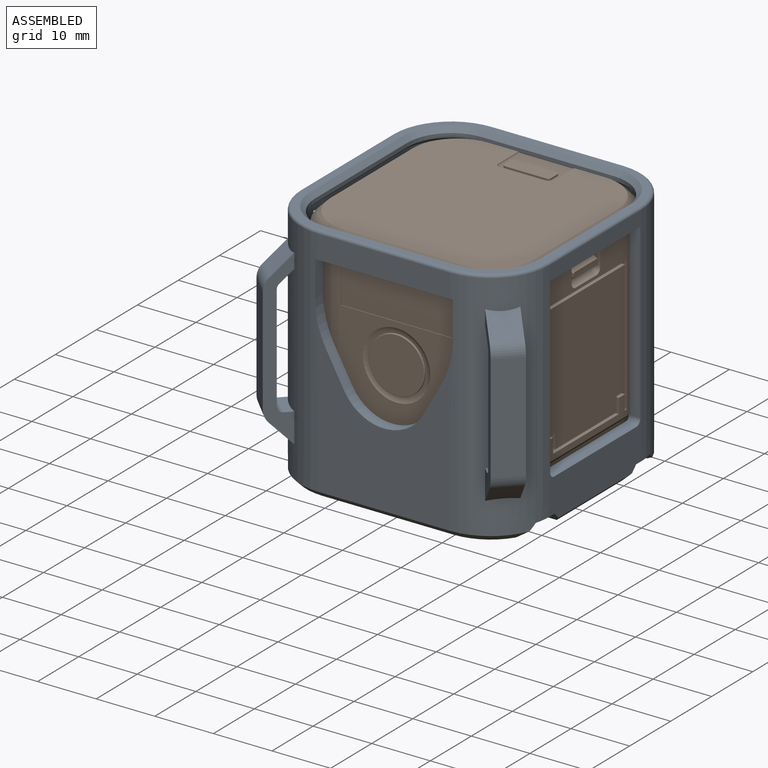
[diagram: assembled view]
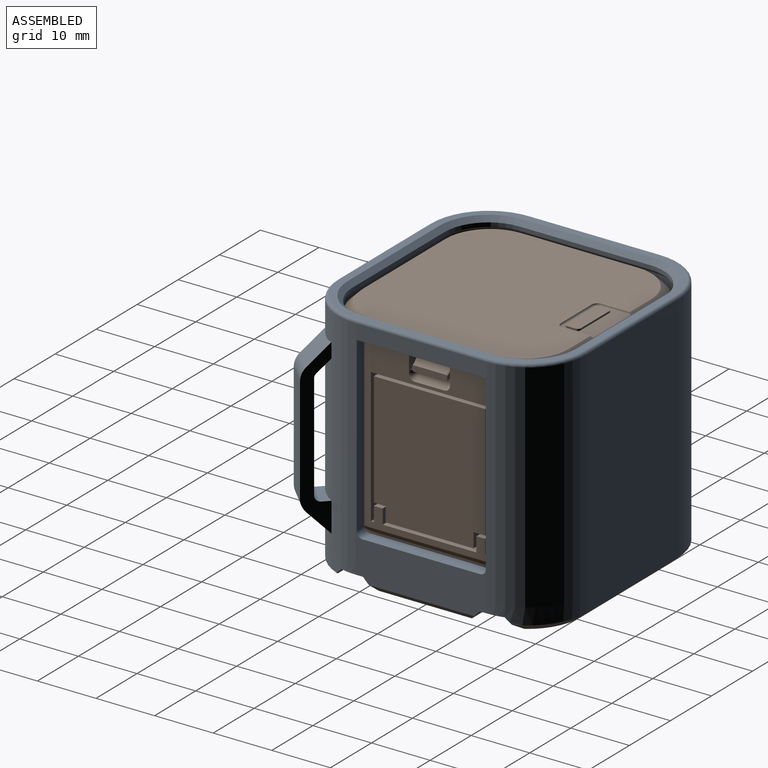
[diagram: assembled view, second angle]
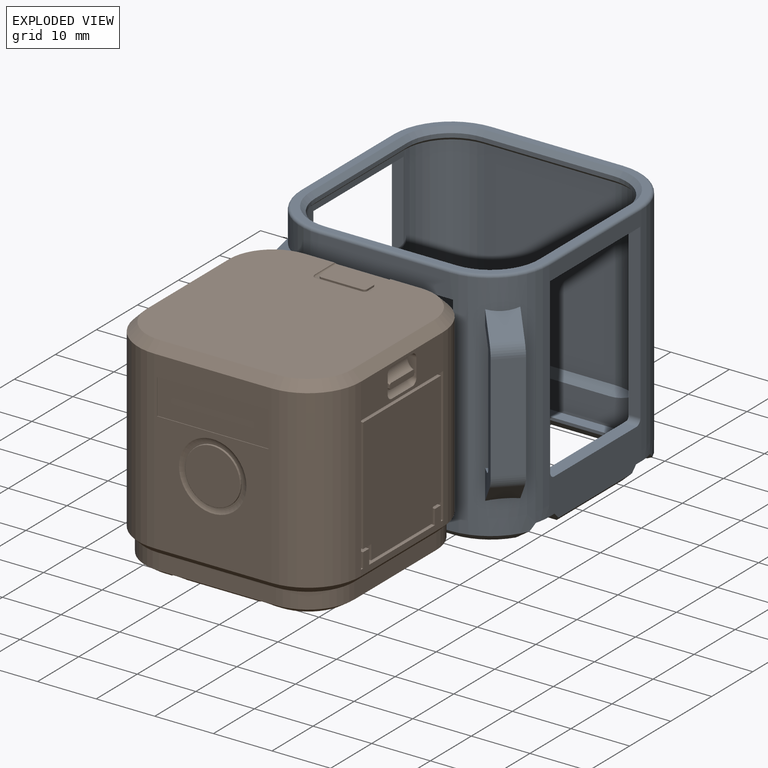
[diagram: exploded view]
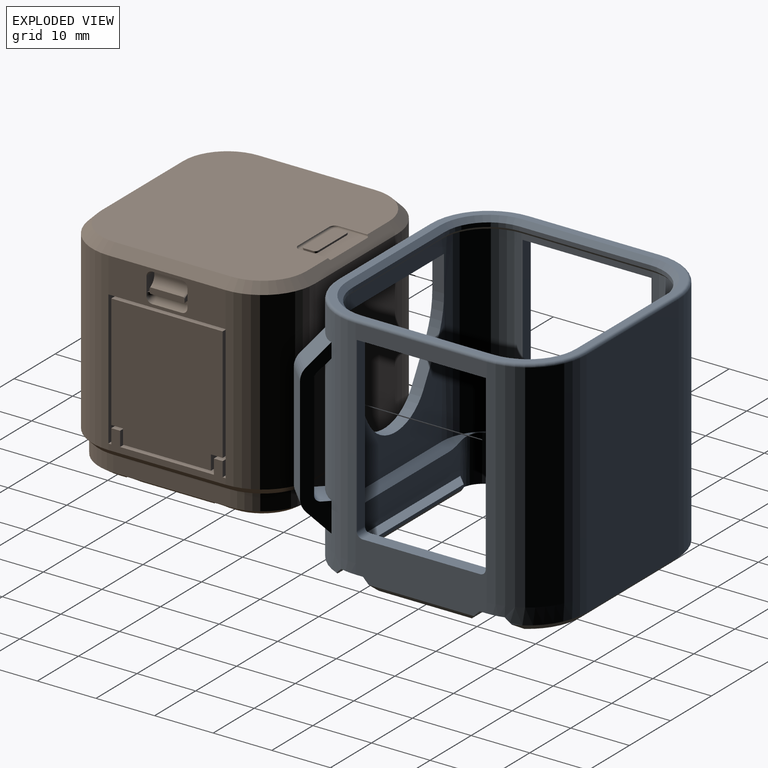
[diagram: exploded view, second angle]
ASSEMBLY  parts=2 mates=2
PART A: 163 faces, bbox 46.1x45.1x41.4 mm
  f0: plane 15.9x2.75mm, normal (0,0,-1), area 43.7mm2, adj f4,f13,f158,f161
  f1: plane 15.9x2.75mm, normal (0,0,-1), area 43.7mm2, adj f3,f15,f151,f155
  f2: plane 37.69x4.25mm, normal (0,0,-1), area 89.2mm2, adj f10,f11,f14,f16,f28,f120,f145,f150
  f3: plane 17.4x1.5mm, normal (-0.71,0,-0.71), area 35.3mm2, adj f1,f18,f23,f148,f151,f155
  f4: plane 17.4x1.5mm, normal (0.71,0,-0.71), area 35.3mm2, adj f0,f17,f25,f147,f158,f161
  f5: cylinder r=10mm len=10mm, axis (0,0,1), area 39.9mm2, adj f8,f16,f39,f41,f152,f153
  f6: cylinder r=10mm len=10mm, axis (0,0,1), area 39.9mm2, adj f7,f14,f39,f43,f160,f162
  f7: plane 22.4x2.75mm, normal (-1,0,0), area 58.1mm2, adj f6,f13,f38,f44,f158,f159,f161,f162
  f8: plane 22.4x2.75mm, normal (1,0,0), area 58.1mm2, adj f5,f15,f37,f46,f151,f153,f155,f156
  f9: plane 27.9x5.29mm, normal (1,0,0), area 133.5mm2, adj f10,f20,f47,f139,f141,f143,f159,f162
  f10: cylinder r=4mm len=7.89mm, axis (0,0,-1), area 46.2mm2, adj f2,f9,f48,f139,f145,f160
  f11: cylinder r=4mm len=7.89mm, axis (0,0,-1), area 46.2mm2, adj f2,f12,f48,f138,f150,f152
  f12: plane 27.9x5.29mm, normal (-1,0,0), area 133.5mm2, adj f11,f19,f49,f138,f140,f142,f153,f156
  f13: plane 17.9x1mm, normal (-0.71,0,-0.71), area 23.9mm2, adj f0,f7,f158,f161
  f14: cone r=10mm half-angle=45deg, axis (0,0,1), area 14.8mm2, adj f2,f6,f120,f160
  f15: plane 17.9x1mm, normal (0.71,0,-0.71), area 23.9mm2, adj f1,f8,f151,f155
  f16: cone r=10mm half-angle=45deg, axis (0,0,1), area 14.8mm2, adj f2,f5,f120,f152
  f17: plane 2x2mm, normal (0.71,0.71,0), area 2mm2, adj f4,f20,f25,f161
  f18: plane 2x2mm, normal (-0.71,0.71,0), area 2mm2, adj f3,f19,f23,f151
  f19: plane 19.9x2mm, normal (0,0,1), area 35.8mm2, adj f12,f18,f23,f148
  f20: plane 19.9x2mm, normal (0,0,1), area 35.8mm2, adj f9,f17,f25,f147
  f21: plane 27.9x2mm, normal (0,0,1), area 51.8mm2, adj f24,f50,f146,f149
  f22: plane 27.9x2mm, normal (0,0,1), area 51.8mm2, adj f26,f48,f145,f150
  f23: plane 15.9x0.5mm, normal (-1,0,0), area 8mm2, adj f3,f18,f19,f148
  f24: plane 23.9x0.5mm, normal (0,1,0), area 12mm2, adj f21,f29,f146,f149
  f25: plane 15.9x0.5mm, normal (1,0,0), area 8mm2, adj f4,f17,f20,f147
  f26: plane 23.9x0.5mm, normal (0,-1,0), area 12mm2, adj f22,f28,f145,f150
  f27: plane 37.69x4.25mm, normal (0,0,-1), area 89.2mm2, adj f29,f47,f49,f117,f118,f119,f146,f149
  f28: plane 26.9x1.5mm, normal (0,-0.71,-0.71), area 53.9mm2, adj f2,f26,f145,f150
  f29: plane 26.9x1.5mm, normal (0,0.71,-0.71), area 53.9mm2, adj f24,f27,f146,f149
  f30: cylinder r=10mm len=37mm, axis (0,0,1), area 539.6mm2, adj f31,f32,f38,f44,f78,f79,f80,f93
  f31: plane 22.84x22.4mm, normal (0,-1,0), area 311mm2, adj f30,f40,f45,f73,f74,f75,f76,f78
  f32: plane 22.4x4mm, normal (0,-1,0), area 89.6mm2, adj f30,f45,f79,f126
  f33: plane 22.4x2.5mm, normal (0,1,0), area 56mm2, adj f35,f36,f71,f79
  f34: plane 22.4x18.59mm, normal (0,1,0), area 215.8mm2, adj f35,f36,f73,f74,f75,f76,f78,f144
  f35: cylinder r=8mm len=31.25mm, axis (0,0,-1), area 388.2mm2, adj f33,f34,f51,f69,f76,f77,f79,f142
  f36: cylinder r=8mm len=31.25mm, axis (0,0,-1), area 388.2mm2, adj f33,f34,f53,f72,f78,f79,f80,f143
  f37: cylinder r=10mm len=10mm, axis (0,0,1), area 39.9mm2, adj f8,f40,f45,f119,f154,f156
  f38: cylinder r=10mm len=10mm, axis (0,0,1), area 39.9mm2, adj f7,f30,f40,f117,f157,f159
  f39: plane 22.4x2.75mm, normal (0,1,0), area 61.6mm2, adj f5,f6,f42,f120
  f40: plane 22.4x2.75mm, normal (0,-1,0), area 61.6mm2, adj f31,f37,f38,f118
  f41: cylinder r=10mm len=37mm, axis (0,0,1), area 581.2mm2, adj f5,f42,f46,f125
  f42: plane 37x22.4mm, normal (0,1,0), area 828.8mm2, adj f39,f41,f43,f123
  f43: cylinder r=10mm len=37mm, axis (0,0,1), area 581.2mm2, adj f6,f42,f44,f121
  f44: plane 37x22.4mm, normal (-1,0,0), area 158.2mm2, adj f7,f30,f43,f81,f82,f83,f84,f85
  f45: cylinder r=10mm len=37mm, axis (0,0,1), area 539.6mm2, adj f31,f32,f37,f46,f76,f77,f79,f105
  f46: plane 37x22.4mm, normal (1,0,0), area 158.2mm2, adj f8,f41,f45,f87,f88,f89,f90,f91
  f47: cylinder r=4mm len=7.89mm, axis (0,0,-1), area 46.2mm2, adj f9,f27,f50,f143,f146,f157
  f48: plane 27.9x5.29mm, normal (0,-1,0), area 133.5mm2, adj f10,f11,f22,f137,f138,f139
  f49: cylinder r=4mm len=7.89mm, axis (0,0,-1), area 46.2mm2, adj f12,f27,f50,f142,f149,f154
  f50: plane 27.9x5.29mm, normal (0,1,0), area 133.5mm2, adj f21,f47,f49,f142,f143,f144
  f51: plane 31.25x22.4mm, normal (-1,0,0), area 34.7mm2, adj f35,f54,f67,f87,f88,f89,f91,f92
  f52: plane 31.25x22.4mm, normal (0,-1,0), area 700mm2, adj f54,f55,f66,f137
  f53: plane 31.25x22.4mm, normal (1,0,0), area 34.7mm2, adj f36,f55,f70,f81,f82,f84,f85,f86
  f54: cylinder r=8mm len=31.25mm, axis (0,0,-1), area 392.7mm2, adj f51,f52,f65,f138
  f55: cylinder r=8mm len=31.25mm, axis (0,0,-1), area 392.7mm2, adj f52,f53,f68,f139
  f56: plane 22.4x0.7mm, normal (0,-1,0), area 15.7mm2, adj f57,f63,f66,f129
  f57: cylinder r=7.5mm len=7.5mm, axis (0,0,-1), area 8.2mm2, adj f56,f58,f65,f130
  f58: plane 22.4x0.7mm, normal (-1,0,0), area 15.7mm2, adj f57,f59,f67,f132
  f59: cylinder r=7.5mm len=7.5mm, axis (0,0,-1), area 8.2mm2, adj f58,f60,f69,f134
  f60: plane 22.4x0.7mm, normal (0,1,0), area 15.7mm2, adj f59,f61,f71,f136
  f61: cylinder r=7.5mm len=7.5mm, axis (0,0,-1), area 8.2mm2, adj f60,f62,f72,f135
  f62: plane 22.4x0.7mm, normal (1,0,0), area 15.7mm2, adj f61,f63,f70,f133
  f63: cylinder r=7.5mm len=7.5mm, axis (0,0,-1), area 8.2mm2, adj f56,f62,f68,f131
  f64: plane 41.4x41.4mm, normal (0,0,1), area 174.6mm2, adj f121,f122,f123,f124,f125,f126,f127,f128
  f65: cone r=8mm half-angle=45deg, axis (0,0,-1), area 8.6mm2, adj f54,f57,f66,f67
  f66: plane 22.4x0.5mm, normal (0,-0.71,-0.71), area 15.8mm2, adj f52,f56,f65,f68
  f67: plane 22.4x0.5mm, normal (-0.71,0,-0.71), area 15.8mm2, adj f51,f58,f65,f69
  f68: cone r=8mm half-angle=45deg, axis (0,0,-1), area 8.6mm2, adj f55,f63,f66,f70
  f69: cone r=8mm half-angle=45deg, axis (0,0,-1), area 8.6mm2, adj f35,f59,f67,f71
  f70: plane 22.4x0.5mm, normal (0.71,0,-0.71), area 15.8mm2, adj f53,f62,f68,f72
  f71: plane 22.4x0.5mm, normal (0,0.71,-0.71), area 15.8mm2, adj f33,f60,f69,f72
  f72: cone r=8mm half-angle=45deg, axis (0,0,-1), area 8.6mm2, adj f36,f61,f70,f71
  f73: plane 5.61x3.1mm, normal (0.88,0,0.48), area 12.8mm2, adj f31,f34,f74,f78
  f74: cylinder r=7.75mm len=13.57mm, axis (0,-1,0), area 33.1mm2, adj f31,f34,f73,f75
  f75: plane 5.61x3.1mm, normal (-0.88,0,0.48), area 12.8mm2, adj f31,f34,f74,f76
  f76: cylinder r=15mm len=7.25mm, axis (0,-1,0), area 15.1mm2, adj f31,f34,f35,f45,f75,f77
  f77: plane 6.14x2mm, normal (-1,0,0), area 12.3mm2, adj f35,f45,f76,f79
  f78: cylinder r=15mm len=7.25mm, axis (0,-1,0), area 15.1mm2, adj f30,f31,f34,f36,f73,f80
  f79: plane 23.5x2.02mm, normal (0,0,-1), area 47mm2, adj f30,f32,f33,f35,f36,f45,f77,f80
  f80: plane 6.14x2mm, normal (1,0,0), area 12.3mm2, adj f30,f36,f78,f79
  f81: plane 29.5x2mm, normal (0,-1,0), area 59mm2, adj f44,f53,f82,f86
  f82: cylinder r=1mm len=2.25mm, axis (1,0,0), area 3.2mm2, adj f44,f53,f81,f83,f141
  f83: plane 20x2.25mm, normal (0,0,1), area 45mm2, adj f44,f82,f84,f141
  f84: cylinder r=1mm len=2.25mm, axis (1,0,0), area 3.2mm2, adj f44,f53,f83,f85,f141
  f85: plane 29.5x2mm, normal (0,1,0), area 59mm2, adj f44,f53,f84,f86
  f86: plane 22x2mm, normal (0,0,-1), area 44mm2, adj f44,f53,f81,f85
  f87: plane 22x2mm, normal (0,0,-1), area 44mm2, adj f46,f51,f88,f92
  f88: plane 29.5x2mm, normal (0,1,0), area 59mm2, adj f46,f51,f87,f89
  f89: cylinder r=1mm len=2.25mm, axis (1,0,0), area 3.2mm2, adj f46,f51,f88,f90,f140
  f90: plane 20x2.25mm, normal (0,0,1), area 45mm2, adj f46,f89,f91,f140
  f91: cylinder r=1mm len=2.25mm, axis (1,0,0), area 3.2mm2, adj f46,f51,f90,f92,f140
  f92: plane 29.5x2mm, normal (0,-1,0), area 59mm2, adj f46,f51,f87,f91
  f93: plane 29.54x3.17mm, normal (-0.71,0.71,0), area 60.7mm2, adj f30,f95,f96,f97,f98,f99,f100,f101
  f94: plane 29.54x3.17mm, normal (0.71,-0.71,0), area 60.7mm2, adj f30,f95,f96,f97,f98,f99,f100,f101
  f95: plane 18.1x3.54mm, normal (-0.71,-0.71,0), area 90.5mm2, adj f93,f94,f103,f104
  f96: plane 18.09x3.54mm, normal (0.71,0.71,0), area 90.4mm2, adj f93,f94,f101,f102
  f97: plane 4.58x4.58mm, normal (0,0,1), area 6.3mm2, adj f30,f93,f94,f102
  f98: plane 5.08x5.08mm, normal (0.5,0.5,-0.71), area 14mm2, adj f30,f93,f94,f101
  f99: plane 6.08x6.08mm, normal (-0.5,-0.5,0.71), area 24mm2, adj f30,f93,f94,f104
  f100: plane 6.08x6.08mm, normal (-0.5,-0.5,-0.71), area 24mm2, adj f30,f93,f94,f103
  f101: cylinder r=1mm len=3.74mm, axis (0.71,-0.71,0), area 3.9mm2, adj f93,f94,f96,f98
  f102: cylinder r=1mm len=4.24mm, axis (0.71,-0.71,0), area 7.9mm2, adj f93,f94,f96,f97
  f103: cylinder r=3mm len=4.16mm, axis (0.71,-0.71,0), area 11.8mm2, adj f93,f94,f95,f100
  f104: cylinder r=3mm len=4.16mm, axis (-0.71,0.71,0), area 11.8mm2, adj f93,f94,f95,f99
  f105: plane 29.54x3.17mm, normal (0.71,0.71,0), area 60.7mm2, adj f45,f107,f108,f109,f110,f111,f112,f113
  f106: plane 29.54x3.17mm, normal (-0.71,-0.71,0), area 60.7mm2, adj f45,f107,f108,f109,f110,f111,f112,f113
  f107: plane 18.1x3.54mm, normal (0.71,-0.71,0), area 90.5mm2, adj f105,f106,f115,f116
  f108: plane 18.09x3.54mm, normal (-0.71,0.71,0), area 90.4mm2, adj f105,f106,f113,f114
  f109: plane 4.58x4.58mm, normal (0,0,1), area 6.3mm2, adj f45,f105,f106,f114
  f110: plane 5.08x5.08mm, normal (-0.5,0.5,-0.71), area 14mm2, adj f45,f105,f106,f113
  f111: plane 6.08x6.08mm, normal (0.5,-0.5,0.71), area 24mm2, adj f45,f105,f106,f116
  f112: plane 6.08x6.08mm, normal (0.5,-0.5,-0.71), area 24mm2, adj f45,f105,f106,f115
  f113: cylinder r=1mm len=3.74mm, axis (-0.71,-0.71,0), area 3.9mm2, adj f105,f106,f108,f110
  f114: cylinder r=1mm len=4.24mm, axis (-0.71,-0.71,0), area 7.9mm2, adj f105,f106,f108,f109
  f115: cylinder r=3mm len=4.16mm, axis (-0.71,-0.71,0), area 11.8mm2, adj f105,f106,f107,f112
  f116: cylinder r=3mm len=4.16mm, axis (0.71,0.71,0), area 11.8mm2, adj f105,f106,f107,f111
  f117: cone r=10mm half-angle=45deg, axis (0,0,1), area 14.8mm2, adj f27,f38,f118,f157
  f118: plane 22.4x1mm, normal (0,-0.71,-0.71), area 31.7mm2, adj f27,f40,f117,f119
  f119: cone r=10mm half-angle=45deg, axis (0,0,1), area 14.8mm2, adj f27,f37,f118,f154
  f120: plane 22.4x1mm, normal (0,0.71,-0.71), area 31.7mm2, adj f2,f14,f16,f39
  f121: torus R=9.5mm, axis (0,0,1), area 12.1mm2, adj f43,f64,f122,f123
  f122: cylinder r=0.5mm len=22.4mm, axis (0,-1,0), area 17.6mm2, adj f44,f64,f121,f124
  f123: cylinder r=0.5mm len=22.4mm, axis (-1,0,0), area 17.6mm2, adj f42,f64,f121,f125
  f124: torus R=9.5mm, axis (0,0,1), area 12.1mm2, adj f30,f64,f122,f126
  f125: torus R=9.5mm, axis (0,0,1), area 12.1mm2, adj f41,f64,f123,f127
  f126: cylinder r=0.5mm len=22.4mm, axis (1,0,0), area 17.6mm2, adj f32,f64,f124,f128
  f127: cylinder r=0.5mm len=22.4mm, axis (0,1,0), area 17.6mm2, adj f46,f64,f125,f128
  f128: torus R=9.5mm, axis (0,0,1), area 12.1mm2, adj f45,f64,f126,f127
  f129: plane 22.4x0.8mm, normal (0,-0.71,0.71), area 25.3mm2, adj f56,f64,f130,f131
  f130: cone r=7.5mm half-angle=45deg, axis (0,0,1), area 14mm2, adj f57,f64,f129,f132
  f131: cone r=7.5mm half-angle=45deg, axis (0,0,1), area 14mm2, adj f63,f64,f129,f133
  f132: plane 22.4x0.8mm, normal (-0.71,0,0.71), area 25.3mm2, adj f58,f64,f130,f134
  f133: plane 22.4x0.8mm, normal (0.71,0,0.71), area 25.3mm2, adj f62,f64,f131,f135
  f134: cone r=7.5mm half-angle=45deg, axis (0,0,1), area 14mm2, adj f59,f64,f132,f136
  f135: cone r=7.5mm half-angle=45deg, axis (0,0,1), area 14mm2, adj f61,f64,f133,f136
  f136: plane 22.4x0.8mm, normal (0,0.71,0.71), area 25.3mm2, adj f60,f64,f134,f135
  f137: plane 22.4x1.25mm, normal (0,-0.71,0.71), area 39.6mm2, adj f48,f52,f138,f139
  f138: cone r=6.75mm half-angle=45deg, axis (0,0,1), area 11.5mm2, adj f11,f12,f48,f54,f137,f140
  f139: cone r=6.75mm half-angle=45deg, axis (0,0,1), area 11.5mm2, adj f9,f10,f48,f55,f137,f141
  f140: plane 22.52x1.37mm, normal (-0.71,0,0.71), area 32.2mm2, adj f12,f51,f89,f90,f91,f138,f142
  f141: plane 22.52x1.37mm, normal (0.71,0,0.71), area 32.2mm2, adj f9,f53,f82,f83,f84,f139,f143
  f142: cone r=6.75mm half-angle=45deg, axis (0,0,1), area 11.5mm2, adj f12,f35,f49,f50,f140,f144
  f143: cone r=6.75mm half-angle=45deg, axis (0,0,1), area 11.5mm2, adj f9,f36,f47,f50,f141,f144
  f144: plane 22.4x1.25mm, normal (0,0.71,0.71), area 39.6mm2, adj f34,f50,f142,f143
  f145: plane 2x2mm, normal (-0.71,-0.71,0), area 4.1mm2, adj f2,f10,f22,f26,f28
  f146: plane 2x2mm, normal (-0.71,0.71,0), area 4.1mm2, adj f21,f24,f27,f29,f47
  f147: plane 2x2mm, normal (0.71,-0.71,0), area 2mm2, adj f4,f20,f25,f158
  f148: plane 2x2mm, normal (-0.71,-0.71,0), area 2mm2, adj f3,f19,f23,f155
  f149: plane 2x2mm, normal (0.71,0.71,0), area 4.1mm2, adj f21,f24,f27,f29,f49
  f150: plane 2x2mm, normal (0.71,-0.71,0), area 4.1mm2, adj f2,f11,f22,f26,f28
  f151: plane 4.5x2mm, normal (0,0.71,-0.71), area 10.5mm2, adj f1,f3,f8,f15,f18,f153
  f152: plane 3.49x2.09mm, normal (0,-0.71,-0.71), area 6.8mm2, adj f2,f5,f11,f16,f153
  f153: plane 4x3.25mm, normal (0,0,-1), area 12.6mm2, adj f5,f8,f12,f151,f152
  f154: plane 3.49x2.09mm, normal (0,0.71,-0.71), area 6.8mm2, adj f27,f37,f49,f119,f156
  f155: plane 4.5x2mm, normal (0,-0.71,-0.71), area 10.5mm2, adj f1,f3,f8,f15,f148,f156
  f156: plane 4x3.25mm, normal (0,0,-1), area 12.6mm2, adj f8,f12,f37,f154,f155
  f157: plane 3.49x2.09mm, normal (0,0.71,-0.71), area 6.8mm2, adj f27,f38,f47,f117,f159
  f158: plane 4.5x2mm, normal (0,-0.71,-0.71), area 10.5mm2, adj f0,f4,f7,f13,f147,f159
  f159: plane 4x3.25mm, normal (0,0,-1), area 12.6mm2, adj f7,f9,f38,f157,f158
  f160: plane 3.49x2.09mm, normal (0,-0.71,-0.71), area 6.8mm2, adj f2,f6,f10,f14,f162
  f161: plane 4.5x2mm, normal (0,0.71,-0.71), area 10.5mm2, adj f0,f4,f7,f13,f17,f162
  f162: plane 4x3.25mm, normal (0,0,-1), area 12.6mm2, adj f6,f7,f9,f160,f161
PART B: 200 faces, bbox 38.3x36.6x38.2 mm
  f0: plane 6x1mm, normal (1,0,0), area 5.9mm2, adj f1,f3,f182,f190,f191,f192,f193,f194
  f1: plane 3x2mm, normal (0,0,-1), area 3.7mm2, adj f0,f183,f184,f186,f187,f191,f192,f195
  f2: plane 20x6mm, normal (1,0,0), area 85.9mm2, adj f22,f23,f52,f156,f178,f179,f185,f188
  f3: plane 5.4x1mm, normal (0,-1,0), area 5.4mm2, adj f0,f180,f190,f191,f195,f199
  f4: plane 20x3.5mm, normal (1,0,0), area 27.5mm2, adj f22,f23,f47,f158,f159,f160,f161,f162
  f5: plane 20x1.5mm, normal (0,0.71,-0.71), area 38.5mm2, adj f18,f21,f54,f57,f145,f151,f153
  f6: plane 12.53x1.8mm, normal (0,-1,0), area 22.5mm2, adj f14,f67,f111,f114,f116,f117
  f7: plane 7.62x7.62mm, normal (0,-1,0), area 19.9mm2, adj f14,f16,f60,f65,f66,f67,f112,f113
  f8: plane 7.62x7.62mm, normal (0,-1,0), area 19.9mm2, adj f14,f15,f59,f67,f68,f69,f102,f104
  f9: plane 12.53x1.8mm, normal (0,-1,0), area 22.5mm2, adj f16,f65,f121,f124,f126,f127
  f10: plane 7.62x7.62mm, normal (0,-1,0), area 19.9mm2, adj f16,f17,f62,f63,f64,f65,f122,f123
  f11: plane 12.53x1.8mm, normal (0,-1,0), area 22.5mm2, adj f17,f63,f131,f134,f136,f138
  f12: plane 7.62x7.62mm, normal (0,-1,0), area 23.4mm2, adj f15,f17,f61,f63,f69,f70,f85,f87
  f13: plane 12.53x1.8mm, normal (0,-1,0), area 22.5mm2, adj f15,f69,f101,f103,f106,f107
  f14: plane 20x1.5mm, normal (0.55,-0.83,0), area 31.4mm2, adj f6,f7,f8,f29,f59,f60,f111,f113
  f15: plane 20x1.5mm, normal (0,-0.83,0.55), area 31.4mm2, adj f8,f12,f13,f26,f59,f61,f101,f102
  f16: plane 20x1.5mm, normal (0,-0.83,-0.55), area 31.4mm2, adj f7,f9,f10,f28,f60,f62,f121,f123
  f17: plane 20x1.5mm, normal (-0.55,-0.83,0), area 31.4mm2, adj f10,f11,f12,f27,f61,f62,f131,f132
  f18: plane 30x20mm, normal (0,0,-1), area 600mm2, adj f5,f22,f25,f51
  f19: plane 30x20mm, normal (0,0,1), area 382.1mm2, adj f23,f24,f38,f39,f40,f41,f43,f44
  f20: plane 30x20mm, normal (-1,0,0), area 600mm2, adj f24,f25,f48,f58
  f21: plane 35x35mm, normal (0,1,0), area 1122mm2, adj f5,f52,f53,f54,f55,f56,f57,f58
  f22: cylinder r=9mm len=30mm, axis (0,-1,0), area 424.1mm2, adj f2,f4,f18,f49,f54,f175
  f23: cylinder r=9mm len=30mm, axis (0,1,0), area 424.1mm2, adj f2,f4,f19,f45,f53,f157
  f24: cylinder r=9mm len=30mm, axis (0,-1,0), area 424.1mm2, adj f19,f20,f46,f56
  f25: cylinder r=9mm len=30mm, axis (0,1,0), area 424.1mm2, adj f18,f20,f50,f57
  f26: plane 20x2.75mm, normal (0,0,1), area 55mm2, adj f15,f30,f33,f44
  f27: plane 20x2.75mm, normal (-1,0,0), area 55mm2, adj f17,f30,f31,f48
  f28: plane 20x2.75mm, normal (0,0,-1), area 55mm2, adj f16,f31,f32,f51
  f29: plane 20x2.75mm, normal (1,0,0), area 55mm2, adj f14,f32,f33,f47
  f30: cylinder r=7.85mm len=7.85mm, axis (0,1,0), area 33.9mm2, adj f26,f27,f46,f61
  f31: cylinder r=7.85mm len=7.85mm, axis (0,-1,0), area 33.9mm2, adj f27,f28,f50,f62
  f32: cylinder r=7.85mm len=7.85mm, axis (0,1,0), area 33.9mm2, adj f28,f29,f49,f60
  f33: cylinder r=7.85mm len=7.85mm, axis (0,-1,0), area 33.9mm2, adj f26,f29,f45,f59
  f34: cylinder r=4.75mm len=9.5mm, axis (0,0,1), area 6mm2, adj f35,f37
  f35: plane 9.57x9.57mm, normal (0,0,1), area 1.1mm2, adj f34,f43
  f36: plane 9.3x9.3mm, normal (0,0,1), area 67.9mm2, adj f37
  f37: torus R=4.65mm, axis (0,0,1), area 4.7mm2, adj f34,f36
  f38: plane 6x0.1mm, normal (1,0,0), area 0.6mm2, adj f19,f39,f41,f42
  f39: plane 19x0.1mm, normal (0,1,0), area 1.9mm2, adj f19,f38,f40,f42
  f40: plane 6x0.1mm, normal (-1,0,0), area 0.6mm2, adj f19,f39,f41,f42
  f41: plane 19x0.1mm, normal (0,-1,0), area 1.9mm2, adj f19,f38,f40,f42
  f42: plane 19x6mm, normal (0,0,1), area 114mm2, adj f38,f39,f40,f41
  f43: torus R=4.79mm, axis (0,0,-1), area 34mm2, adj f19,f35
  f44: plane 20x1.15mm, normal (0,-0.71,0.71), area 32.5mm2, adj f19,f26,f45,f46
  f45: cone r=7.5mm half-angle=45deg, axis (0,1,0), area 21.5mm2, adj f23,f33,f44,f47
  f46: cone r=7.5mm half-angle=45deg, axis (0,1,0), area 21.5mm2, adj f24,f30,f44,f48
  f47: plane 20x1.15mm, normal (0.71,-0.71,0), area 32.5mm2, adj f4,f29,f45,f49
  f48: plane 20x1.15mm, normal (-0.71,-0.71,0), area 32.5mm2, adj f20,f27,f46,f50
  f49: cone r=7.5mm half-angle=45deg, axis (0,1,0), area 21.5mm2, adj f22,f32,f47,f51
  f50: cone r=7.5mm half-angle=45deg, axis (0,1,0), area 21.5mm2, adj f25,f31,f48,f51
  f51: plane 20x1.15mm, normal (0,-0.71,-0.71), area 32.5mm2, adj f18,f28,f49,f50
  f52: plane 20x1.5mm, normal (0.71,0.71,0), area 42.4mm2, adj f2,f21,f53,f54
  f53: cone r=7.5mm half-angle=45deg, axis (0,-1,0), area 27.5mm2, adj f21,f23,f52,f55
  f54: cone r=7.5mm half-angle=45deg, axis (0,-1,0), area 27.5mm2, adj f5,f21,f22,f52
  f55: plane 20x1.5mm, normal (0,0.71,0.71), area 42.4mm2, adj f19,f21,f53,f56
  f56: cone r=7.5mm half-angle=45deg, axis (0,-1,0), area 27.5mm2, adj f21,f24,f55,f58
  f57: cone r=7.5mm half-angle=45deg, axis (0,-1,0), area 27.5mm2, adj f5,f21,f25,f58
  f58: plane 20x1.5mm, normal (-0.71,0.71,0), area 42.4mm2, adj f20,f21,f56,f57
  f59: cone r=6.35mm half-angle=56.3deg, axis (0,1,0), area 20.1mm2, adj f8,f14,f15,f33
  f60: cone r=6.35mm half-angle=56.3deg, axis (0,1,0), area 20.1mm2, adj f7,f14,f16,f32
  f61: cone r=6.35mm half-angle=56.3deg, axis (0,1,0), area 20.1mm2, adj f12,f15,f17,f30
  f62: cone r=6.35mm half-angle=56.3deg, axis (0,1,0), area 20.1mm2, adj f10,f16,f17,f31
  f63: plane 19.85x1mm, normal (1,0,0), area 16.4mm2, adj f10,f11,f12,f64,f70,f71,f133,f134
  f64: cylinder r=4.55mm len=4.55mm, axis (0,-1,0), area 7.1mm2, adj f10,f63,f65,f71
  f65: plane 20x1mm, normal (0,0,1), area 16.5mm2, adj f7,f9,f10,f64,f66,f71,f122,f124
  f66: cylinder r=4.55mm len=4.55mm, axis (0,-1,0), area 7.1mm2, adj f7,f65,f67,f71
  f67: plane 20x1mm, normal (-1,0,0), area 16.5mm2, adj f6,f7,f8,f66,f68,f71,f112,f114
  f68: cylinder r=4.55mm len=4.55mm, axis (0,-1,0), area 7.1mm2, adj f8,f67,f69,f71
  f69: plane 19.85x1mm, normal (0,0,-1), area 16.4mm2, adj f8,f12,f13,f68,f70,f71,f103,f104
  f70: plane 4.7x4.7mm, normal (0.71,0,-0.71), area 6.6mm2, adj f12,f63,f69,f71
  f71: plane 29.1x29.1mm, normal (0,-1,0), area 202.8mm2, adj f63,f64,f65,f66,f67,f68,f69,f70
  f72: plane 19.02x1mm, normal (1,0,0), area 19mm2, adj f71,f73,f79,f80
  f73: cylinder r=2.55mm len=2.55mm, axis (0,-1,0), area 4mm2, adj f71,f72,f74,f80
  f74: plane 20x1mm, normal (0,0,1), area 20mm2, adj f71,f73,f75,f80
  f75: cylinder r=2.55mm len=2.55mm, axis (0,-1,0), area 4mm2, adj f71,f74,f76,f80
  f76: plane 20x1mm, normal (-1,0,0), area 20mm2, adj f71,f75,f77,f80
  f77: cylinder r=2.55mm len=2.55mm, axis (0,-1,0), area 4mm2, adj f71,f76,f78,f80
  f78: plane 19.02x1mm, normal (0,0,-1), area 19mm2, adj f71,f77,f79,f80
  f79: plane 3.53x3.53mm, normal (0.71,0,-0.71), area 5mm2, adj f71,f72,f78,f80
  f80: plane 25.1x25.1mm, normal (0,-1,0), area 128.7mm2, adj f72,f73,f74,f75,f76,f77,f78,f79
  f81: cylinder r=12.5mm len=25mm, axis (0,-1,0), area 117.8mm2, adj f80,f82
  f82: plane 25x25mm, normal (0,-1,0), area 336.9mm2, adj f81,f84
  f83: plane 0.14x0.14mm, normal (0,-1,0), area 0mm2, adj f84
  f84: torus R=0.07mm, axis (0,1,0), area 182.6mm2, adj f82,f83
  f85: cylinder r=0.35mm len=2mm, axis (0,-1,0), area 4.4mm2, adj f12,f86
  f86: plane 0.7x0.7mm, normal (0,-1,0), area 0.4mm2, adj f85
  f87: cylinder r=0.35mm len=2mm, axis (0,-1,0), area 4.4mm2, adj f12,f88
  f88: plane 0.7x0.7mm, normal (0,-1,0), area 0.4mm2, adj f87
  f89: cylinder r=0.35mm len=2mm, axis (0,-1,0), area 4.4mm2, adj f12,f90
  f90: plane 0.7x0.7mm, normal (0,-1,0), area 0.4mm2, adj f89
  f91: cylinder r=0.35mm len=2mm, axis (0,-1,0), area 4.4mm2, adj f12,f92
  f92: plane 0.7x0.7mm, normal (0,-1,0), area 0.4mm2, adj f91
  f93: cylinder r=0.35mm len=2mm, axis (0,-1,0), area 4.4mm2, adj f12,f94
  f94: plane 0.7x0.7mm, normal (0,-1,0), area 0.4mm2, adj f93
  f95: cylinder r=0.35mm len=2mm, axis (0,-1,0), area 4.4mm2, adj f12,f96
  f96: plane 0.7x0.7mm, normal (0,-1,0), area 0.4mm2, adj f95
  f97: cylinder r=0.35mm len=2mm, axis (0,-1,0), area 4.4mm2, adj f12,f98
  f98: plane 0.7x0.7mm, normal (0,-1,0), area 0.4mm2, adj f97
  f99: cylinder r=0.35mm len=2mm, axis (0,-1,0), area 4.4mm2, adj f12,f100
  f100: plane 0.7x0.7mm, normal (0,-1,0), area 0.4mm2, adj f99
  f101: cylinder r=1.25mm len=1.25mm, axis (0,-1,0), area 0.6mm2, adj f13,f15,f103,f105
  f102: cylinder r=1.25mm len=1.25mm, axis (0,-1,0), area 0.6mm2, adj f8,f15,f104,f105
  f103: plane 1.6x0.7mm, normal (1,0,0), area 1.1mm2, adj f13,f69,f101,f105
  f104: plane 1.6x0.7mm, normal (-1,0,0), area 1.1mm2, adj f8,f69,f102,f105
  f105: plane 2.85x2.5mm, normal (0,-1,0), area 6.5mm2, adj f69,f101,f102,f103,f104
  f106: cylinder r=1.25mm len=1.25mm, axis (0,-1,0), area 0.6mm2, adj f13,f15,f107,f110
  f107: plane 1.6x0.7mm, normal (-1,0,0), area 1.1mm2, adj f13,f69,f106,f110
  f108: cylinder r=1.25mm len=1.25mm, axis (0,-1,0), area 0.6mm2, adj f12,f15,f109,f110
  f109: plane 1.6x0.7mm, normal (1,0,0), area 1.1mm2, adj f12,f69,f108,f110
  f110: plane 2.85x2.5mm, normal (0,-1,0), area 6.5mm2, adj f69,f106,f107,f108,f109
  f111: cylinder r=1.25mm len=1.25mm, axis (0,-1,0), area 0.6mm2, adj f6,f14,f114,f115
  f112: plane 1.6x0.7mm, normal (0,0,1), area 1.1mm2, adj f7,f67,f113,f115
  f113: cylinder r=1.25mm len=1.25mm, axis (0,-1,0), area 0.6mm2, adj f7,f14,f112,f115
  f114: plane 1.6x0.7mm, normal (0,0,-1), area 1.1mm2, adj f6,f67,f111,f115
  f115: plane 2.85x2.5mm, normal (0,-1,0), area 6.5mm2, adj f67,f111,f112,f113,f114
  f116: cylinder r=1.25mm len=1.25mm, axis (0,-1,0), area 0.6mm2, adj f6,f14,f117,f120
  f117: plane 1.6x0.7mm, normal (0,0,1), area 1.1mm2, adj f6,f67,f116,f120
  f118: cylinder r=1.25mm len=1.25mm, axis (0,-1,0), area 0.6mm2, adj f8,f14,f119,f120
  f119: plane 1.6x0.7mm, normal (0,0,-1), area 1.1mm2, adj f8,f67,f118,f120
  f120: plane 2.85x2.5mm, normal (0,-1,0), area 6.5mm2, adj f67,f116,f117,f118,f119
  f121: cylinder r=1.25mm len=1.25mm, axis (0,-1,0), area 0.6mm2, adj f9,f16,f124,f125
  f122: plane 1.6x0.7mm, normal (1,0,0), area 1.1mm2, adj f10,f65,f123,f125
  f123: cylinder r=1.25mm len=1.25mm, axis (0,-1,0), area 0.6mm2, adj f10,f16,f122,f125
  f124: plane 1.6x0.7mm, normal (-1,0,0), area 1.1mm2, adj f9,f65,f121,f125
  f125: plane 2.85x2.5mm, normal (0,-1,0), area 6.5mm2, adj f65,f121,f122,f123,f124
  f126: cylinder r=1.25mm len=1.25mm, axis (0,-1,0), area 0.6mm2, adj f9,f16,f127,f130
  f127: plane 1.6x0.7mm, normal (1,0,0), area 1.1mm2, adj f9,f65,f126,f130
  f128: cylinder r=1.25mm len=1.25mm, axis (0,-1,0), area 0.6mm2, adj f7,f16,f129,f130
  f129: plane 1.6x0.7mm, normal (-1,0,0), area 1.1mm2, adj f7,f65,f128,f130
  f130: plane 2.85x2.5mm, normal (0,-1,0), area 6.5mm2, adj f65,f126,f127,f128,f129
  f131: cylinder r=1.25mm len=1.25mm, axis (0,-1,0), area 0.6mm2, adj f11,f17,f134,f135
  f132: cylinder r=1.25mm len=1.25mm, axis (0,-1,0), area 0.6mm2, adj f10,f17,f133,f135
  f133: plane 1.6x0.7mm, normal (0,0,1), area 1.1mm2, adj f10,f63,f132,f135
  f134: plane 1.6x0.7mm, normal (0,0,-1), area 1.1mm2, adj f11,f63,f131,f135
  f135: plane 2.85x2.5mm, normal (0,-1,0), area 6.5mm2, adj f63,f131,f132,f133,f134
  f136: cylinder r=1.25mm len=1.25mm, axis (0,-1,0), area 0.6mm2, adj f11,f17,f138,f140
  f137: cylinder r=1.25mm len=1.25mm, axis (0,-1,0), area 0.6mm2, adj f12,f17,f139,f140
  f138: plane 1.6x0.7mm, normal (0,0,1), area 1.1mm2, adj f11,f63,f136,f140
  f139: plane 1.6x0.7mm, normal (0,0,-1), area 1.1mm2, adj f12,f63,f137,f140
  f140: plane 2.85x2.5mm, normal (0,-1,0), area 6.5mm2, adj f63,f136,f137,f138,f139
  f141: plane 7x0.3mm, normal (0,0,-1), area 2.1mm2, adj f145,f146,f147,f150
  f142: plane 1.5x0.3mm, normal (1,0,0), area 0.5mm2, adj f145,f146,f147,f148
  f143: plane 7x0.3mm, normal (0,0,1), area 2.1mm2, adj f145,f146,f148,f149
  f144: plane 1.5x0.3mm, normal (-1,0,0), area 0.5mm2, adj f145,f146,f149,f150
  f145: plane 8.9x5.8mm, normal (0,1,0), area 31.6mm2, adj f5,f141,f142,f143,f144,f147,f148,f149
  f146: plane 8x2.5mm, normal (0,1,0), area 19.8mm2, adj f141,f142,f143,f144,f147,f148,f149,f150
  f147: cylinder r=0.5mm len=0.5mm, axis (0,1,0), area 0.2mm2, adj f141,f142,f145,f146
  f148: cylinder r=0.5mm len=0.5mm, axis (0,-1,0), area 0.2mm2, adj f142,f143,f145,f146
  f149: cylinder r=0.5mm len=0.5mm, axis (0,1,0), area 0.2mm2, adj f143,f144,f145,f146
  f150: cylinder r=0.5mm len=0.5mm, axis (0,-1,0), area 0.2mm2, adj f141,f144,f145,f146
  f151: cylinder r=0.3mm len=5.1mm, axis (0,0,-1), area 2.4mm2, adj f5,f21,f145,f152
  f152: torus R=0.7mm, axis (0,1,0), area 0.7mm2, adj f21,f145,f151,f154
  f153: cylinder r=0.3mm len=5.1mm, axis (0,0,1), area 2.4mm2, adj f5,f21,f145,f155
  f154: cylinder r=0.3mm len=7.5mm, axis (1,0,0), area 3.5mm2, adj f21,f145,f152,f155
  f155: torus R=0.7mm, axis (0,1,0), area 0.7mm2, adj f21,f145,f153,f154
  f156: plane 20x2mm, normal (0,-1,0), area 40mm2, adj f2,f157,f175,f176
  f157: plane 23x2mm, normal (0,0,-1), area 46mm2, adj f23,f156,f158,f176
  f158: plane 2x0.5mm, normal (0,1,0), area 1mm2, adj f4,f157,f159,f176
  f159: plane 2.5x2mm, normal (0,0,1), area 5mm2, adj f4,f158,f160,f176
  f160: plane 2x1.5mm, normal (0,1,0), area 3mm2, adj f4,f159,f161,f176
  f161: plane 2.5x2mm, normal (0,0,-1), area 5mm2, adj f4,f160,f162,f176
  f162: plane 16x2mm, normal (0,1,0), area 32mm2, adj f4,f161,f163,f176
  f163: plane 2.5x2mm, normal (0,0,1), area 5mm2, adj f4,f162,f164,f176
  f164: plane 2x1.5mm, normal (0,1,0), area 3mm2, adj f4,f163,f165,f176
  f165: plane 2.5x2mm, normal (0,0,-1), area 5mm2, adj f4,f164,f166,f176
  f166: plane 2x0.5mm, normal (0,1,0), area 1mm2, adj f4,f165,f175,f176
  f167: plane 2.5x2mm, normal (0,0,-1), area 5mm2, adj f168,f174,f176,f177
  f168: plane 15x2mm, normal (0,-1,0), area 30mm2, adj f167,f169,f176,f177
  f169: plane 2.5x2mm, normal (0,0,1), area 5mm2, adj f168,f170,f176,f177
  f170: plane 2x2mm, normal (0,-1,0), area 4mm2, adj f169,f171,f176,f177
  f171: plane 19.5x2mm, normal (0,0,1), area 39mm2, adj f170,f172,f176,f177
  f172: plane 19x2mm, normal (0,1,0), area 38mm2, adj f171,f173,f176,f177
  f173: plane 19.5x2mm, normal (0,0,-1), area 39mm2, adj f172,f174,f176,f177
  f174: plane 2x2mm, normal (0,-1,0), area 4mm2, adj f167,f173,f176,f177
  f175: plane 23x2mm, normal (0,0,1), area 46mm2, adj f22,f156,f166,f176
  f176: plane 23x20mm, normal (1,0,0), area 44.5mm2, adj f156,f157,f158,f159,f160,f161,f162,f163
  f177: plane 22x19mm, normal (1,0,0), area 408mm2, adj f167,f168,f169,f170,f171,f172,f173,f174
  f178: plane 2.5x2mm, normal (0,0,-1), area 5mm2, adj f2,f181,f186,f188
  f179: plane 2.5x2mm, normal (0,0,1), area 5mm2, adj f2,f184,f186,f189
  f180: plane 5x0.5mm, normal (1,0,0), area 2.5mm2, adj f3,f195,f197,f199
  f181: plane 2x0.5mm, normal (0,1,0), area 0.7mm2, adj f178,f182,f186,f199
  f182: plane 3x2mm, normal (0,0,1), area 3.7mm2, adj f0,f181,f183,f186,f187,f190,f194,f199
  f183: plane 6x0.8mm, normal (0,1,0), area 4.8mm2, adj f1,f182,f186,f187
  f184: plane 2x0.5mm, normal (0,1,0), area 0.7mm2, adj f1,f179,f186,f195
  f185: plane 5x2mm, normal (0,-1,0), area 10mm2, adj f2,f186,f188,f189
  f186: plane 7x3.5mm, normal (1,0,0), area 6.1mm2, adj f1,f178,f179,f181,f182,f183,f184,f185
  f187: plane 6x0.56mm, normal (1,0,0), area 3.2mm2, adj f1,f182,f183,f192,f193,f194
  f188: cylinder r=1mm len=2mm, axis (-1,0,0), area 3.1mm2, adj f2,f178,f185,f186
  f189: cylinder r=1mm len=2mm, axis (1,0,0), area 3.1mm2, adj f2,f179,f185,f186
  f190: cylinder r=0.3mm len=0.98mm, axis (-1,0,0), area 0.4mm2, adj f0,f3,f182,f199
  f191: cylinder r=0.3mm len=0.98mm, axis (1,0,0), area 0.4mm2, adj f0,f1,f3,f195
  f192: torus R=1.77mm, axis (1,0,0), area 0.7mm2, adj f0,f1,f187,f193
  f193: cylinder r=1.5mm len=5.4mm, axis (0,0,-1), area 11.1mm2, adj f0,f187,f192,f194
  f194: torus R=1.77mm, axis (1,0,0), area 0.7mm2, adj f0,f182,f187,f193
  f195: cylinder r=1mm len=1mm, axis (0,1,0), area 0.8mm2, adj f1,f2,f3,f180,f184,f191,f196
  f196: sphere r=1mm, area 1.6mm2, adj f2,f195,f197
  f197: cylinder r=1mm len=5mm, axis (0,0,-1), area 7.9mm2, adj f2,f180,f196,f198
  f198: sphere r=1mm, area 1.6mm2, adj f2,f197,f199
  f199: cylinder r=1mm len=1mm, axis (0,-1,0), area 0.8mm2, adj f2,f3,f180,f181,f182,f190,f198
PLACE A t=(0,-18.67,2)mm
PLACE B rot(axis=(1,0,0),90deg) t=(0.47,-18.47,7.45)mm
MATE planar A.f52 <-> B.f18  axis (0,-1,0) through (0,0.53,23.62)mm
MATE planar B.f21 <-> A.f5  axis (0,0,1) through (0.47,-19.18,40.45)mm
